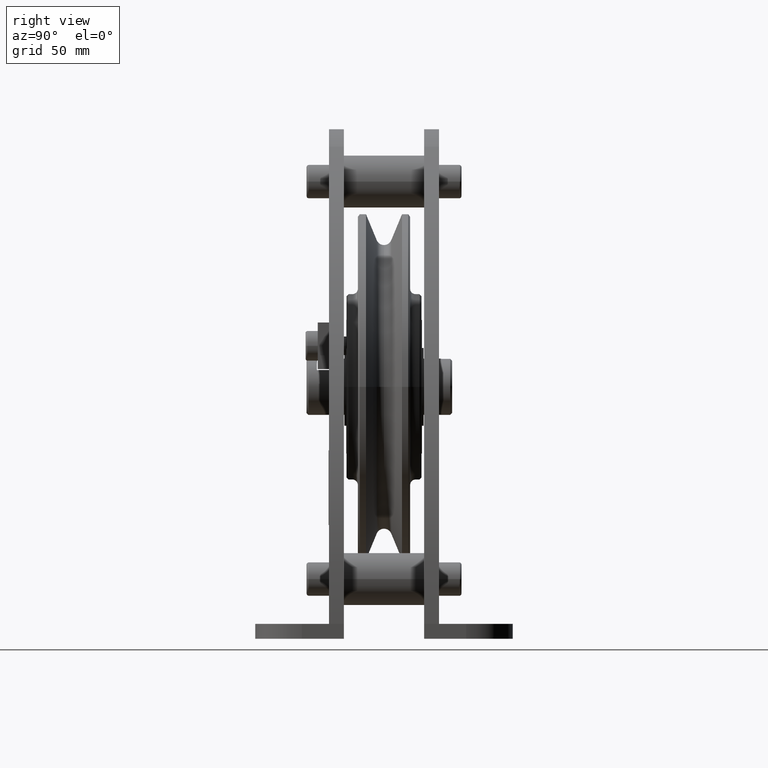
[diagram: clean part render]
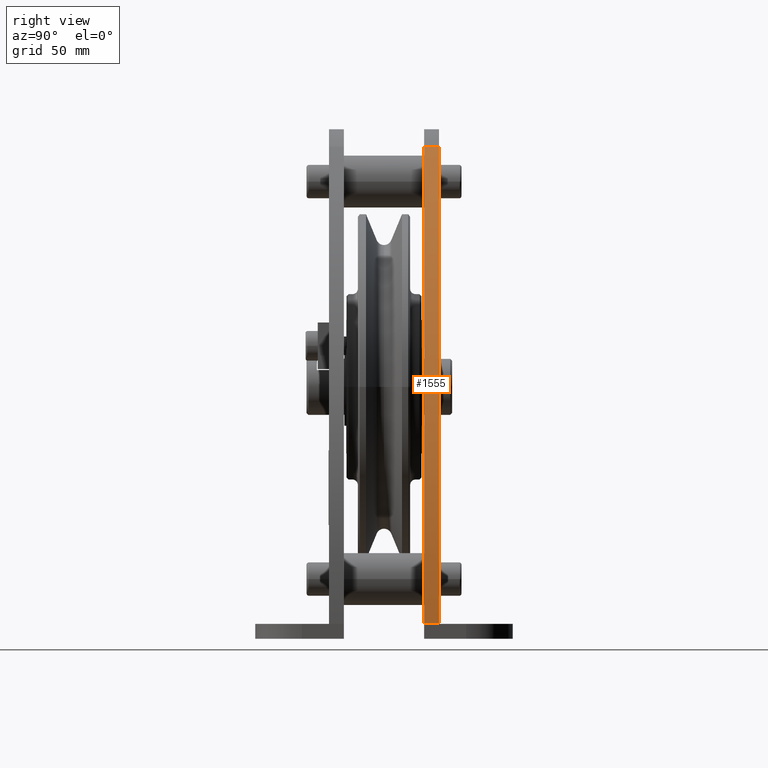
[diagram: same view with one face highlighted and labeled with its STEP entity id]
A machine part, right view. The second image highlights one B-rep face of the part: STEP entity #1555.
In plain terms, the highlighted cylindrical surface (partial cylindrical patch) has radius 375 mm, axis along (-0, 1, 0).
Its self-contained STEP definition (entity closure, byte-faithful):
#1555=ADVANCED_FACE('',(#3371),#3372,.T.);
#3371=FACE_OUTER_BOUND('',#5457,.T.);
#3372=CYLINDRICAL_SURFACE('',#5458,375.000346192699);
#5457=EDGE_LOOP('',(#10351,#10352,#10353,#10354));
#5458=AXIS2_PLACEMENT_3D('',#10355,#10356,#10357);
#10351=ORIENTED_EDGE('',*,*,#14177,.T.);
#10352=ORIENTED_EDGE('',*,*,#14175,.F.);
#10353=ORIENTED_EDGE('',*,*,#14148,.T.);
#10354=ORIENTED_EDGE('',*,*,#14178,.T.);
#10355=CARTESIAN_POINT('',(-252.500298154599,21.5,-126.810187808699));
#10356=DIRECTION('',(-0.0,1.0,0.0));
#10357=DIRECTION('',(0.731884177391438,0.0,0.681429050513741));
#14148=EDGE_CURVE('',#17537,#17535,#17538,.T.);
#14175=EDGE_CURVE('',#17537,#17581,#17583,.T.);
#14177=EDGE_CURVE('',#17585,#17581,#17586,.T.);
#14178=EDGE_CURVE('',#17535,#17585,#17587,.T.);
#17535=VERTEX_POINT('',#24850);
#17537=VERTEX_POINT('',#24853);
#17538=CIRCLE('',#24854,375.000346192699);
#17581=VERTEX_POINT('',#24909);
#17583=LINE('',#24911,#24912);
#17585=VERTEX_POINT('',#24914);
#17586=CIRCLE('',#24915,375.000346192699);
#17587=LINE('',#24916,#24917);
#24850=CARTESIAN_POINT('',(122.499999999917,21.5,-126.999999999808));
#24853=CARTESIAN_POINT('',(21.9565217399796,21.5,128.725942039967));
#24854=AXIS2_PLACEMENT_3D('',#29052,#29053,#29054);
#24909=CARTESIAN_POINT('',(21.9565217399796,29.5,128.725942039967));
#24911=CARTESIAN_POINT('',(21.9565217399796,21.5,128.725942039967));
#24912=VECTOR('',#29097,1.0);
#24914=CARTESIAN_POINT('',(122.499999999917,29.5,-126.999999999808));
#24915=AXIS2_PLACEMENT_3D('',#29098,#29099,#29100);
#24916=CARTESIAN_POINT('',(122.499999999917,21.5,-126.999999999808));
#24917=VECTOR('',#29101,1.0);
#29052=CARTESIAN_POINT('',(-252.500298154599,21.5,-126.810187808699));
#29053=DIRECTION('',(-0.0,1.0,0.0));
#29054=DIRECTION('',(0.731884177391438,0.0,0.681429050513741));
#29097=DIRECTION('',(0.0,1.0,0.0));
#29098=CARTESIAN_POINT('',(-252.500298154599,29.5,-126.810187808699));
#29099=DIRECTION('',(0.0,-1.0,0.0));
#29100=DIRECTION('',(0.731884177391438,0.0,0.681429050513741));
#29101=DIRECTION('',(0.0,1.0,0.0));